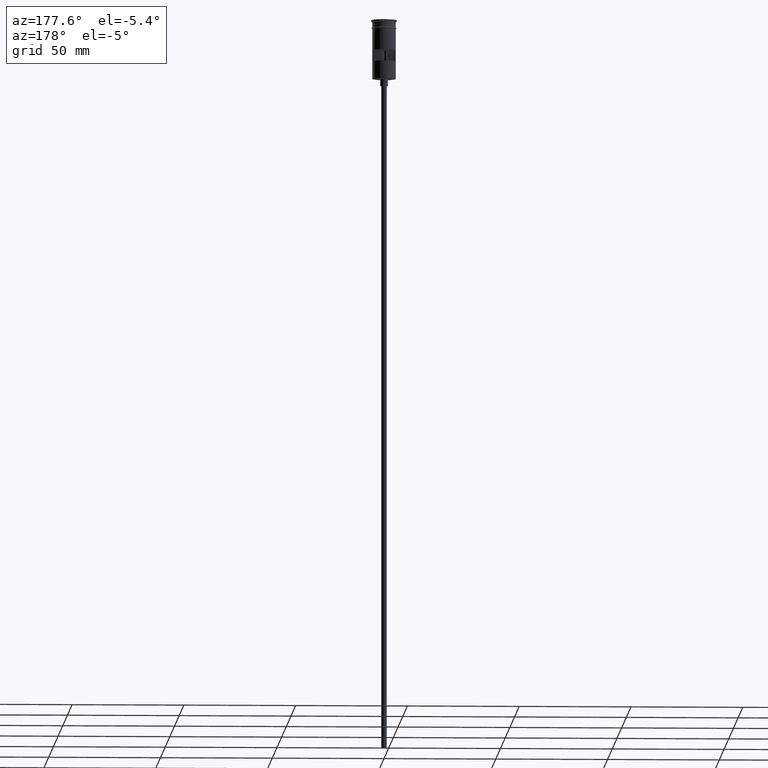
[diagram: clean part render]
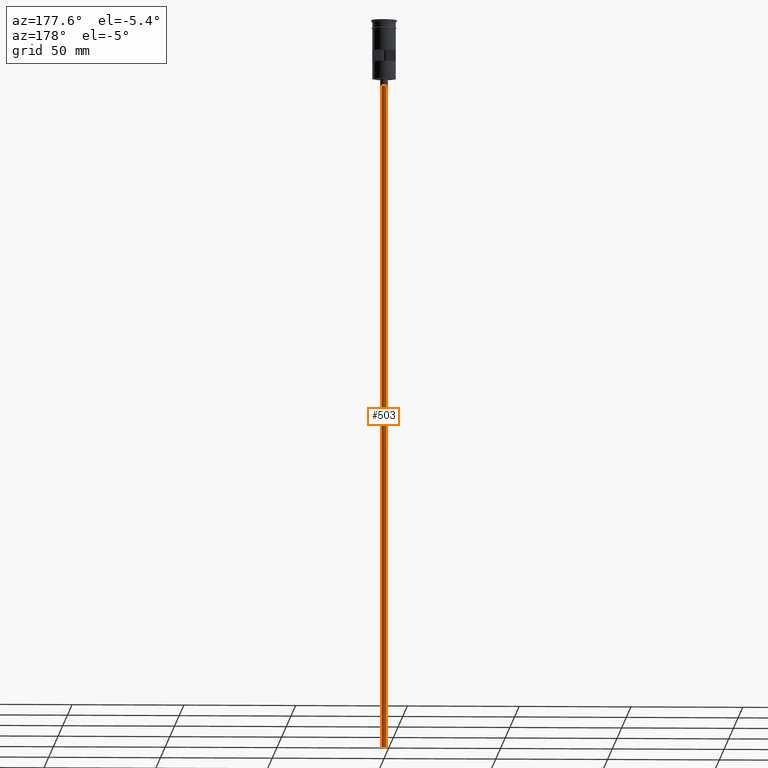
[diagram: same view with one face highlighted and labeled with its STEP entity id]
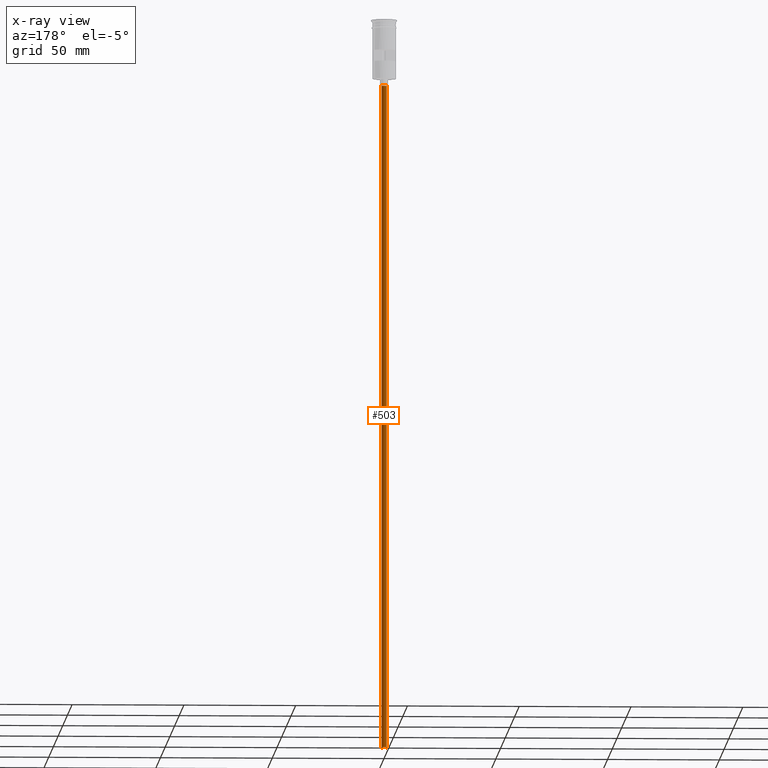
[diagram: x-ray of the same camera — body ghosted, the highlighted face saturated]
A machine part, auxiliary view. The second image highlights one B-rep face of the part: STEP entity #503.
The next image is the same camera in x-ray: the body ghosted, the highlighted face saturated — about 0% of this face is hidden behind the body in this view.
In plain terms, the highlighted cylindrical surface (edge-blend (fillet) strip) has radius 1.25 mm, axis along (-0, -0, 1).
Its self-contained STEP definition (entity closure, byte-faithful):
#25 = CARTESIAN_POINT ( 'NONE',  ( -1.250000000000000000, 1.530808498934191571E-16, -326.5000000000000000 ) ) ;
#209 = DIRECTION ( 'NONE',  ( -1.000000000000000000, 0.000000000000000000, 0.000000000000000000 ) ) ;
#236 = DIRECTION ( 'NONE',  ( -0.000000000000000000, -0.000000000000000000, 1.000000000000000000 ) ) ;
#240 = CARTESIAN_POINT ( 'NONE',  ( -1.250000000000000000, 1.530808498934191571E-16, -326.5000000000000000 ) ) ;
#254 = DIRECTION ( 'NONE',  ( -1.000000000000000000, 0.000000000000000000, 0.000000000000000000 ) ) ;
#274 = CIRCLE ( 'NONE', #1005, 1.250000000000000000 ) ;
#298 = CIRCLE ( 'NONE', #1026, 1.250000000000000000 ) ;
#387 = CARTESIAN_POINT ( 'NONE',  ( 1.250000000000000000, 0.000000000000000000, -326.5000000000000000 ) ) ;
#409 = ORIENTED_EDGE ( 'NONE', *, *, #1216, .F. ) ;
#410 = CYLINDRICAL_SURFACE ( 'NONE', #1059, 1.250000000000000000 ) ;
#418 = VERTEX_POINT ( 'NONE', #1125 ) ;
#460 = CARTESIAN_POINT ( 'NONE',  ( 0.000000000000000000, 0.000000000000000000, -29.50000000000000000 ) ) ;
#494 = CARTESIAN_POINT ( 'NONE',  ( 0.000000000000000000, 0.000000000000000000, -326.5000000000000000 ) ) ;
#503 = ADVANCED_FACE ( 'NONE', ( #1047 ), #410, .T. ) ;
#529 = DIRECTION ( 'NONE',  ( 1.000000000000000000, 0.000000000000000000, 0.000000000000000000 ) ) ;
#553 = VERTEX_POINT ( 'NONE', #1162 ) ;
#653 = EDGE_LOOP ( 'NONE', ( #771, #1297, #1500, #409 ) ) ;
#689 = DIRECTION ( 'NONE',  ( -0.000000000000000000, -0.000000000000000000, 1.000000000000000000 ) ) ;
#697 = EDGE_CURVE ( 'NONE', #892, #553, #274, .T. ) ;
#771 = ORIENTED_EDGE ( 'NONE', *, *, #1261, .F. ) ;
#892 = VERTEX_POINT ( 'NONE', #1409 ) ;
#921 = VECTOR ( 'NONE', #236, 1000.000000000000000 ) ;
#932 = DIRECTION ( 'NONE',  ( -0.000000000000000000, -0.000000000000000000, 1.000000000000000000 ) ) ;
#957 = DIRECTION ( 'NONE',  ( 0.000000000000000000, 0.000000000000000000, -1.000000000000000000 ) ) ;
#994 = DIRECTION ( 'NONE',  ( 0.000000000000000000, 0.000000000000000000, -1.000000000000000000 ) ) ;
#1005 = AXIS2_PLACEMENT_3D ( 'NONE', #460, #957, #209 ) ;
#1025 = LINE ( 'NONE', #25, #1514 ) ;
#1026 = AXIS2_PLACEMENT_3D ( 'NONE', #494, #994, #254 ) ;
#1047 = FACE_OUTER_BOUND ( 'NONE', #653, .T. ) ;
#1059 = AXIS2_PLACEMENT_3D ( 'NONE', #1312, #932, #529 ) ;
#1125 = CARTESIAN_POINT ( 'NONE',  ( 1.250000000000000000, 0.000000000000000000, -326.5000000000000000 ) ) ;
#1162 = CARTESIAN_POINT ( 'NONE',  ( 1.250000000000000000, 0.000000000000000000, -29.50000000000000000 ) ) ;
#1216 = EDGE_CURVE ( 'NONE', #418, #553, #1501, .T. ) ;
#1261 = EDGE_CURVE ( 'NONE', #1596, #418, #298, .T. ) ;
#1297 = ORIENTED_EDGE ( 'NONE', *, *, #1345, .T. ) ;
#1312 = CARTESIAN_POINT ( 'NONE',  ( 0.000000000000000000, 0.000000000000000000, -326.5000000000000000 ) ) ;
#1345 = EDGE_CURVE ( 'NONE', #1596, #892, #1025, .T. ) ;
#1409 = CARTESIAN_POINT ( 'NONE',  ( -1.250000000000000000, 1.530808498934191571E-16, -29.50000000000000000 ) ) ;
#1500 = ORIENTED_EDGE ( 'NONE', *, *, #697, .T. ) ;
#1501 = LINE ( 'NONE', #387, #921 ) ;
#1514 = VECTOR ( 'NONE', #689, 1000.000000000000000 ) ;
#1596 = VERTEX_POINT ( 'NONE', #240 ) ;